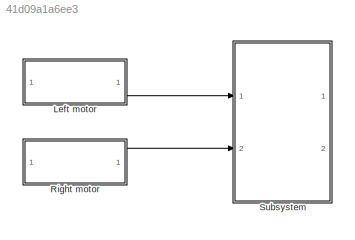
MODEL slx_41d09a1a6ee3
KIND model
CONFIG AbsTol = auto
CONFIG EnableMultiTasking = on
CONFIG FixedStep = auto
CONFIG MaxStep = auto
CONFIG MinStep = auto
CONFIG RelTol = 1e-3
CONFIG SampleTimeConstraint = Unconstrained
CONFIG Solver = VariableStepAuto
CONFIG SolverName = VariableStepAuto
CONFIG StartTime = 0.0
CONFIG StopTime = 10.0
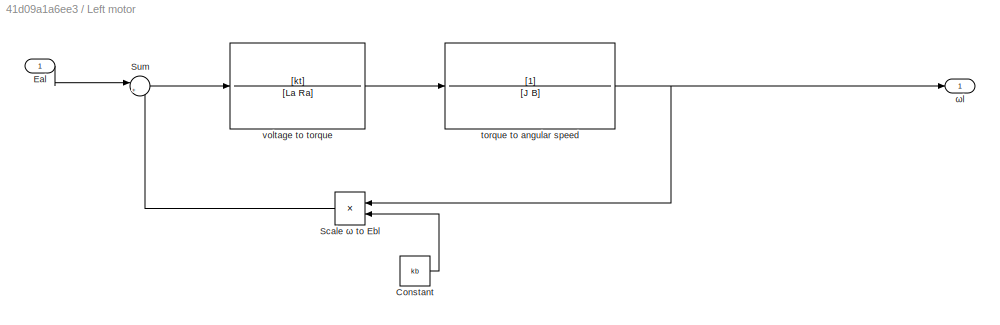
BLOCK [SubSystem] Left motor
  Ports = [1, 1]
  RequestExecContextInheritance = off
  Variant = off
BLOCK [Constant] Left motor/Constant
  Value = kb
BLOCK [Inport] Left motor/Eal
  IconDisplay = Port number
BLOCK [Product] Left motor/Scale ω to Ebl
  InputSameDT = off
  Inputs = **
  OutDataTypeStr = Inherit: Inherit via internal rule
  Ports = [2, 1]
  RndMeth = Floor
  SaturateOnIntegerOverflow = off
BLOCK [Sum] Left motor/Sum
  IconShape = round
  InputSameDT = off
  Inputs = |+-
  OutDataTypeStr = Inherit: Inherit via internal rule
  Ports = [2, 1]
  SaturateOnIntegerOverflow = off
BLOCK [TransferFcn] Left motor/torque to angular speed
  Denominator = [J B]
BLOCK [TransferFcn] Left motor/voltage to torque
  Denominator = [La Ra]
  Numerator = [kt]
BLOCK [Outport] Left motor/ωl
  IconDisplay = Port number
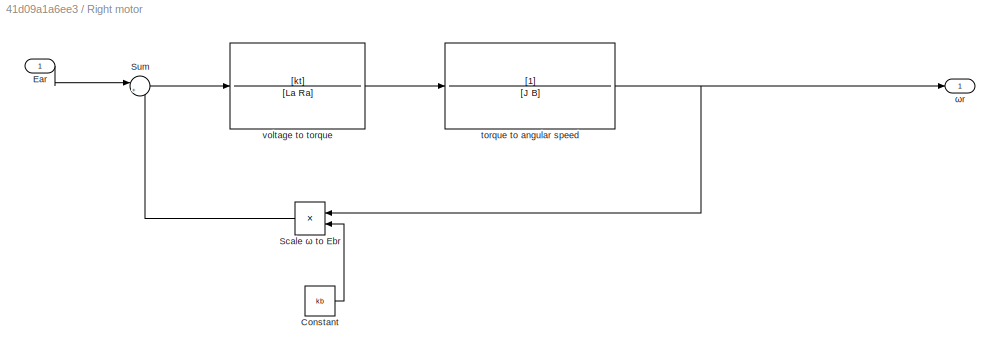
BLOCK [SubSystem] Right motor
  Ports = [1, 1]
  RequestExecContextInheritance = off
  Variant = off
BLOCK [Constant] Right motor/Constant
  Value = kb
BLOCK [Inport] Right motor/Ear
  IconDisplay = Port number
BLOCK [Product] Right motor/Scale ω to Ebr
  InputSameDT = off
  Inputs = **
  OutDataTypeStr = Inherit: Inherit via internal rule
  Ports = [2, 1]
  RndMeth = Floor
  SaturateOnIntegerOverflow = off
BLOCK [Sum] Right motor/Sum
  IconShape = round
  InputSameDT = off
  Inputs = |+-
  OutDataTypeStr = Inherit: Inherit via internal rule
  Ports = [2, 1]
  SaturateOnIntegerOverflow = off
BLOCK [TransferFcn] Right motor/torque to angular speed
  Denominator = [J B]
BLOCK [TransferFcn] Right motor/voltage to torque
  Denominator = [La Ra]
  Numerator = [kt]
BLOCK [Outport] Right motor/ωr
  IconDisplay = Port number
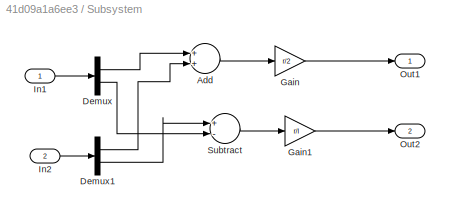
BLOCK [SubSystem] Subsystem
  Ports = [2, 2]
  RequestExecContextInheritance = off
  Variant = off
BLOCK [Sum] Subsystem/Add
  InputSameDT = off
  OutDataTypeStr = Inherit: Inherit via internal rule
  Ports = [2, 1]
  SaturateOnIntegerOverflow = off
BLOCK [Demux] Subsystem/Demux
  DisplayOption = bar
  Outputs = 2
  Ports = [1, 2]
BLOCK [Demux] Subsystem/Demux1
  DisplayOption = bar
  Outputs = 2
  Ports = [1, 2]
BLOCK [Gain] Subsystem/Gain
  Gain = r/2
  OutDataTypeStr = Inherit: Inherit via internal rule
  ParamDataTypeStr = Inherit: Inherit via internal rule
  SaturateOnIntegerOverflow = off
BLOCK [Gain] Subsystem/Gain1
  Gain = r/l
  OutDataTypeStr = Inherit: Inherit via internal rule
  ParamDataTypeStr = Inherit: Inherit via internal rule
  SaturateOnIntegerOverflow = off
BLOCK [Inport] Subsystem/In1
  IconDisplay = Port number
BLOCK [Inport] Subsystem/In2
  IconDisplay = Port number
  Port = 2
BLOCK [Outport] Subsystem/Out1
  IconDisplay = Port number
BLOCK [Outport] Subsystem/Out2
  IconDisplay = Port number
  Port = 2
BLOCK [Sum] Subsystem/Subtract
  InputSameDT = off
  Inputs = +-
  OutDataTypeStr = Inherit: Inherit via internal rule
  Ports = [2, 1]
  SaturateOnIntegerOverflow = off
LINE Left motor/Constant:1 -> Left motor/Scale ω to Ebl:2
LINE Left motor/Eal:1 -> Left motor/Sum:1
LINE Left motor/Scale ω to Ebl:1 -> Left motor/Sum:2
LINE Left motor/Sum:1 -> Left motor/voltage to torque:1
NET Left motor/torque to angular speed:1 -> Left motor/Scale ω to Ebl:1, Left motor/ωl:1
LINE Left motor/voltage to torque:1 -> Left motor/torque to angular speed:1
LINE Left motor:1 -> Subsystem:1
LINE Right motor/Constant:1 -> Right motor/Scale ω to Ebr:2
LINE Right motor/Ear:1 -> Right motor/Sum:1
LINE Right motor/Scale ω to Ebr:1 -> Right motor/Sum:2
LINE Right motor/Sum:1 -> Right motor/voltage to torque:1
NET Right motor/torque to angular speed:1 -> Right motor/Scale ω to Ebr:1, Right motor/ωr:1
LINE Right motor/voltage to torque:1 -> Right motor/torque to angular speed:1
LINE Right motor:1 -> Subsystem:2
LINE Subsystem/Add:1 -> Subsystem/Gain:1
LINE Subsystem/Demux1:1 -> Subsystem/Add:2
LINE Subsystem/Demux1:2 -> Subsystem/Subtract:1
LINE Subsystem/Demux:1 -> Subsystem/Add:1
LINE Subsystem/Demux:2 -> Subsystem/Subtract:2
LINE Subsystem/Gain1:1 -> Subsystem/Out2:1
LINE Subsystem/Gain:1 -> Subsystem/Out1:1
LINE Subsystem/In1:1 -> Subsystem/Demux:1
LINE Subsystem/In2:1 -> Subsystem/Demux1:1
LINE Subsystem/Subtract:1 -> Subsystem/Gain1:1
note: NET lines group one-source signal fan-out (src -> all destinations, sorted); 1:1 wires keep LINE
